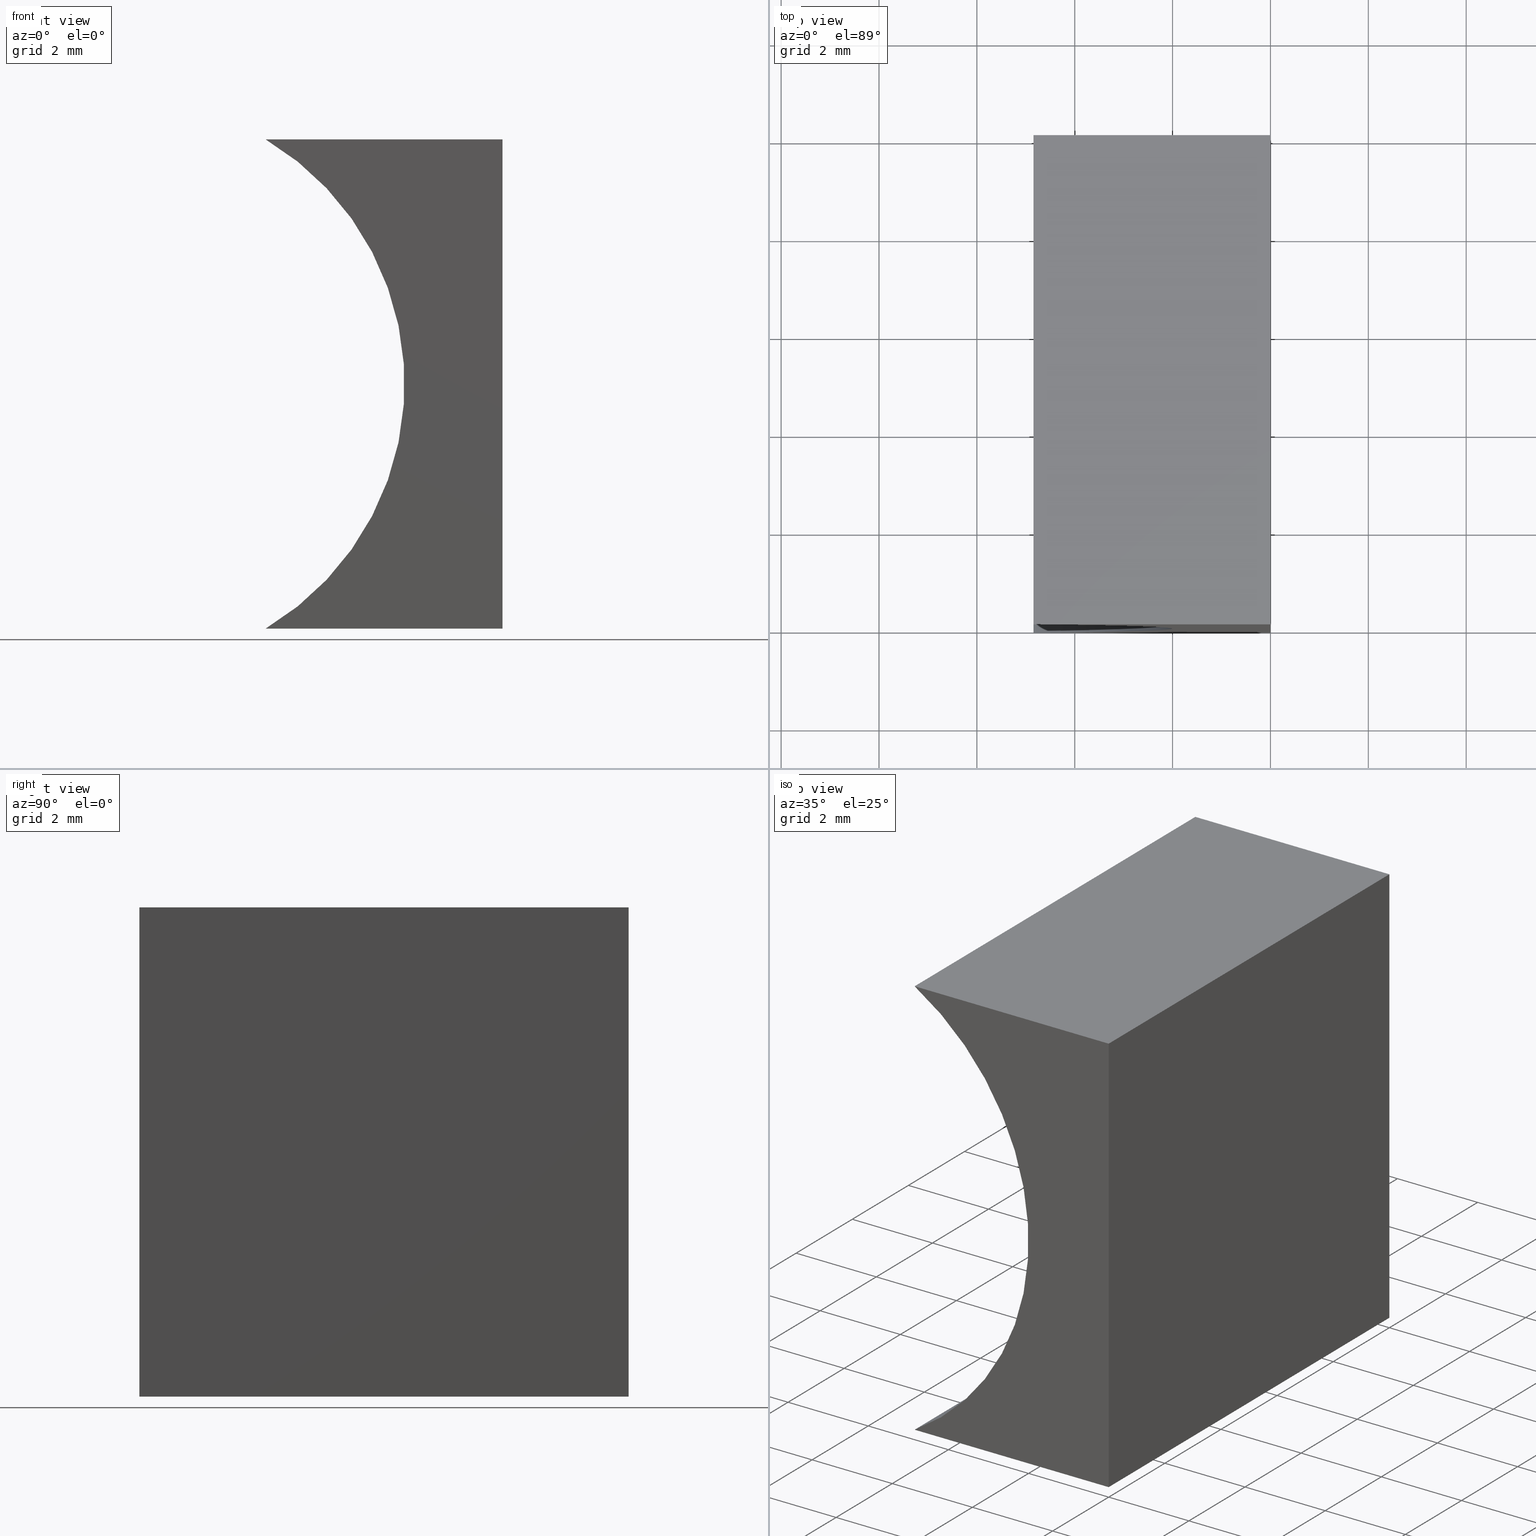
[diagram: canonical four-view strip — front | top / right | iso, engineering-drawing reading convention]
A machine part, canonical four-view strip (front | top / right | iso — engineering-drawing reading convention). The complete STEP part file that produces these views, byte-faithful:
ISO-10303-21;
HEADER;
FILE_DESCRIPTION (( 'STEP AP214' ),
    '1' );
FILE_NAME ('155464.STEP',
    '2019-07-03T03:42:29',
    ( 'user' ),
    ( '΢���й�' ),
    'SwSTEP 2.0',
    'SolidWorks 2016',
    '' );
FILE_SCHEMA (( 'AUTOMOTIVE_DESIGN' ));
ENDSEC;

DATA;
#1 = DIRECTION ( 'NONE',  ( 0.0000000000000000000, -0.0000000000000000000, 1.000000000000000000 ) ) ;
#2 = ORIENTED_EDGE ( 'NONE', *, *, #99, .F. ) ;
#3 = CARTESIAN_POINT ( 'NONE',  ( 0.0000000000000000000, 0.0000000000000000000, 0.0000000000000000000 ) ) ;
#4 = PRESENTATION_STYLE_ASSIGNMENT (( #175 ) ) ;
#5 = APPLICATION_PROTOCOL_DEFINITION ( 'draft international standard', 'automotive_design', 1998, #18 ) ;
#6 = MANIFOLD_SOLID_BREP ( '͹̨-����1', #187 ) ;
#7 = LINE ( 'NONE', #23, #85 ) ;
#8 = CYLINDRICAL_SURFACE ( 'NONE', #180, 5.820000000000000300 ) ;
#9 = PRODUCT_DEFINITION_SHAPE ( 'NONE', 'NONE',  #165 ) ;
#10 = SURFACE_STYLE_FILL_AREA ( #124 ) ;
#11 = VECTOR ( 'NONE', #57, 1000.000000000000000 ) ;
#12 = DIRECTION ( 'NONE',  ( 1.000000000000000000, -0.0000000000000000000, -0.0000000000000000000 ) ) ;
#13 = CARTESIAN_POINT ( 'NONE',  ( 0.0000000000000000000, 10.00000000000000000, 0.0000000000000000000 ) ) ;
#14 = DIRECTION ( 'NONE',  ( 0.0000000000000000000, 1.000000000000000000, 0.0000000000000000000 ) ) ;
#15 = CARTESIAN_POINT ( 'NONE',  ( -7.820000000000000300, 0.0000000000000000000, 5.000000000000000900 ) ) ;
#16 = CARTESIAN_POINT ( 'NONE',  ( 0.0000000000000000000, 10.00000000000000000, 0.0000000000000000000 ) ) ;
#17 = DIRECTION ( 'NONE',  ( -6.123233995736766000E-017, -0.0000000000000000000, -1.000000000000000000 ) ) ;
#18 = APPLICATION_CONTEXT ( 'automotive_design' ) ;
#19 = ORIENTED_EDGE ( 'NONE', *, *, #48, .T. ) ;
#20 = ADVANCED_FACE ( 'NONE', ( #45 ), #58, .F. ) ;
#21 = EDGE_LOOP ( 'NONE', ( #19, #144, #162, #192 ) ) ;
#22 = CARTESIAN_POINT ( 'NONE',  ( 6.123233995736766300E-016, 0.0000000000000000000, 10.00000000000000000 ) ) ;
#23 = CARTESIAN_POINT ( 'NONE',  ( 0.0000000000000000000, 0.0000000000000000000, 0.0000000000000000000 ) ) ;
#24 = ORIENTED_EDGE ( 'NONE', *, *, #64, .T. ) ;
#25 = DIRECTION ( 'NONE',  ( 1.000000000000000000, 0.0000000000000000000, -1.091100883338997400E-016 ) ) ;
#26 = ORIENTED_EDGE ( 'NONE', *, *, #167, .F. ) ;
#27 = DIRECTION ( 'NONE',  ( 0.0000000000000000000, 1.000000000000000000, 0.0000000000000000000 ) ) ;
#28 = SURFACE_SIDE_STYLE ('',( #10 ) ) ;
#29 = EDGE_LOOP ( 'NONE', ( #35, #198, #26, #92 ) ) ;
#30 = ADVANCED_FACE ( 'NONE', ( #125 ), #8, .F. ) ;
#31 = EDGE_CURVE ( 'NONE', #100, #129, #177, .T. ) ;
#32 = VERTEX_POINT ( 'NONE', #149 ) ;
#33 = FACE_OUTER_BOUND ( 'NONE', #29, .T. ) ;
#34 = VECTOR ( 'NONE', #113, 1000.000000000000000 ) ;
#35 = ORIENTED_EDGE ( 'NONE', *, *, #141, .T. ) ;
#36 = SHAPE_DEFINITION_REPRESENTATION ( #9, #193 ) ;
#37 = CARTESIAN_POINT ( 'NONE',  ( 6.123233995736766300E-016, 10.00000000000000000, 10.00000000000000000 ) ) ;
#38 = VECTOR ( 'NONE', #17, 1000.000000000000000 ) ;
#39 = PRODUCT ( '155464', '155464', '', ( #182 ) ) ;
#40 = DIRECTION ( 'NONE',  ( -1.000000000000000000, 0.0000000000000000000, -0.0000000000000000000 ) ) ;
#41 = DIRECTION ( 'NONE',  ( -0.0000000000000000000, -1.000000000000000000, -0.0000000000000000000 ) ) ;
#42 = PLANE ( 'NONE',  #101 ) ;
#43 = CARTESIAN_POINT ( 'NONE',  ( 0.0000000000000000000, 10.00000000000000000, 0.0000000000000000000 ) ) ;
#44 =( NAMED_UNIT ( * ) SI_UNIT ( $, .STERADIAN. ) SOLID_ANGLE_UNIT ( ) );
#45 = FACE_OUTER_BOUND ( 'NONE', #68, .T. ) ;
#46 = DIRECTION ( 'NONE',  ( 1.000000000000000000, 0.0000000000000000000, 0.0000000000000000000 ) ) ;
#47 = VECTOR ( 'NONE', #90, 1000.000000000000000 ) ;
#48 = EDGE_CURVE ( 'NONE', #32, #100, #127, .T. ) ;
#49 = LINE ( 'NONE', #87, #34 ) ;
#50 = COLOUR_RGB ( '',1.000000000000000000, 1.000000000000000000, 1.000000000000000000 ) ;
#51 =( LENGTH_UNIT ( ) NAMED_UNIT ( * ) SI_UNIT ( .MILLI., .METRE. ) );
#52 = EDGE_LOOP ( 'NONE', ( #160, #157, #105, #203 ) ) ;
#53 = FACE_OUTER_BOUND ( 'NONE', #137, .T. ) ;
#54 = UNCERTAINTY_MEASURE_WITH_UNIT (LENGTH_MEASURE( 1.000000000000000100E-005 ), #51, 'distance_accuracy_value', 'NONE');
#55 = DIRECTION ( 'NONE',  ( -0.0000000000000000000, -1.000000000000000000, -0.0000000000000000000 ) ) ;
#56 = EDGE_CURVE ( 'NONE', #112, #32, #49, .T. ) ;
#57 = DIRECTION ( 'NONE',  ( -1.000000000000000000, 0.0000000000000000000, 1.091100883338997400E-016 ) ) ;
#58 = PLANE ( 'NONE',  #152 ) ;
#59 = VERTEX_POINT ( 'NONE', #169 ) ;
#60 = DIRECTION ( 'NONE',  ( -1.000000000000000000, 0.0000000000000000000, 1.091100883338997400E-016 ) ) ;
#61 = FILL_AREA_STYLE_COLOUR ( '', #50 ) ;
#62 =( NAMED_UNIT ( * ) SI_UNIT ( $, .STERADIAN. ) SOLID_ANGLE_UNIT ( ) );
#63 = EDGE_LOOP ( 'NONE', ( #65, #24, #188, #93 ) ) ;
#64 = EDGE_CURVE ( 'NONE', #112, #59, #136, .T. ) ;
#65 = ORIENTED_EDGE ( 'NONE', *, *, #99, .T. ) ;
#66 = DIRECTION ( 'NONE',  ( -0.0000000000000000000, -1.000000000000000000, -0.0000000000000000000 ) ) ;
#67 = DIRECTION ( 'NONE',  ( 0.0000000000000000000, 0.0000000000000000000, -1.000000000000000000 ) ) ;
#68 = EDGE_LOOP ( 'NONE', ( #138, #81, #2, #199 ) ) ;
#69 = CARTESIAN_POINT ( 'NONE',  ( 0.0000000000000000000, 0.0000000000000000000, 0.0000000000000000000 ) ) ;
#70 = PLANE ( 'NONE',  #83 ) ;
#71 = ORIENTED_EDGE ( 'NONE', *, *, #48, .F. ) ;
#72 = DIRECTION ( 'NONE',  ( 1.091100883338997400E-016, -0.0000000000000000000, 1.000000000000000000 ) ) ;
#73 = SURFACE_SIDE_STYLE ('',( #75 ) ) ;
#74 = EDGE_CURVE ( 'NONE', #59, #100, #86, .T. ) ;
#75 = SURFACE_STYLE_FILL_AREA ( #156 ) ;
#76 = VECTOR ( 'NONE', #134, 1000.000000000000000 ) ;
#77 = DIRECTION ( 'NONE',  ( 6.123233995736766000E-017, 0.0000000000000000000, 1.000000000000000000 ) ) ;
#78 =( NAMED_UNIT ( * ) PLANE_ANGLE_UNIT ( ) SI_UNIT ( $, .RADIAN. ) );
#79 = LINE ( 'NONE', #102, #47 ) ;
#80 = APPLICATION_CONTEXT ( 'automotive_design' ) ;
#81 = ORIENTED_EDGE ( 'NONE', *, *, #56, .F. ) ;
#82 = FACE_OUTER_BOUND ( 'NONE', #52, .T. ) ;
#83 = AXIS2_PLACEMENT_3D ( 'NONE', #15, #14, #1 ) ;
#84 = ADVANCED_FACE ( 'NONE', ( #53 ), #70, .F. ) ;
#85 = VECTOR ( 'NONE', #60, 1000.000000000000000 ) ;
#86 = LINE ( 'NONE', #171, #174 ) ;
#87 = CARTESIAN_POINT ( 'NONE',  ( -4.841342584317557900, 10.00000000000000000, 8.673617379884035500E-016 ) ) ;
#88 = LINE ( 'NONE', #37, #176 ) ;
#89 = STYLED_ITEM ( 'NONE', ( #4 ), #6 ) ;
#90 = DIRECTION ( 'NONE',  ( -0.0000000000000000000, -1.000000000000000000, -0.0000000000000000000 ) ) ;
#91 = DIRECTION ( 'NONE',  ( 0.0000000000000000000, 0.0000000000000000000, -1.000000000000000000 ) ) ;
#92 = ORIENTED_EDGE ( 'NONE', *, *, #117, .T. ) ;
#93 = ORIENTED_EDGE ( 'NONE', *, *, #167, .T. ) ;
#94 =( LENGTH_UNIT ( ) NAMED_UNIT ( * ) SI_UNIT ( .MILLI., .METRE. ) );
#95 = VECTOR ( 'NONE', #132, 1000.000000000000000 ) ;
#96 = PRODUCT_DEFINITION_CONTEXT ( 'detailed design', #80, 'design' ) ;
#97 = ADVANCED_FACE ( 'NONE', ( #82 ), #42, .F. ) ;
#98 = PRESENTATION_LAYER_ASSIGNMENT (  '', '', ( #89 ) ) ;
#99 = EDGE_CURVE ( 'NONE', #147, #112, #118, .T. ) ;
#100 = VERTEX_POINT ( 'NONE', #154 ) ;
#101 = AXIS2_PLACEMENT_3D ( 'NONE', #119, #91, #40 ) ;
#102 = CARTESIAN_POINT ( 'NONE',  ( 6.123233995736766300E-016, 10.00000000000000000, 10.00000000000000000 ) ) ;
#103 = CARTESIAN_POINT ( 'NONE',  ( -7.820000000000000300, 10.00000000000000000, 5.000000000000000900 ) ) ;
#104 = CARTESIAN_POINT ( 'NONE',  ( -7.820000000000000300, 10.00000000000000000, 5.000000000000000900 ) ) ;
#105 = ORIENTED_EDGE ( 'NONE', *, *, #128, .F. ) ;
#106 = CARTESIAN_POINT ( 'NONE',  ( 0.0000000000000000000, 10.00000000000000000, 0.0000000000000000000 ) ) ;
#107 = MECHANICAL_DESIGN_GEOMETRIC_PRESENTATION_REPRESENTATION (  '', ( #89 ), #116 ) ;
#108 = CARTESIAN_POINT ( 'NONE',  ( 0.0000000000000000000, 10.00000000000000000, 0.0000000000000000000 ) ) ;
#109 = VERTEX_POINT ( 'NONE', #204 ) ;
#110 = UNCERTAINTY_MEASURE_WITH_UNIT (LENGTH_MEASURE( 1.000000000000000100E-005 ), #121, 'distance_accuracy_value', 'NONE');
#111 = ORIENTED_EDGE ( 'NONE', *, *, #31, .F. ) ;
#112 = VERTEX_POINT ( 'NONE', #133 ) ;
#113 = DIRECTION ( 'NONE',  ( -0.0000000000000000000, -1.000000000000000000, -0.0000000000000000000 ) ) ;
#114 = CARTESIAN_POINT ( 'NONE',  ( 6.123233995736766300E-016, 0.0000000000000000000, 10.00000000000000000 ) ) ;
#115 = LINE ( 'NONE', #43, #76 ) ;
#116 =( GEOMETRIC_REPRESENTATION_CONTEXT ( 3 ) GLOBAL_UNCERTAINTY_ASSIGNED_CONTEXT ( ( #148 ) ) GLOBAL_UNIT_ASSIGNED_CONTEXT ( ( #94, #135, #44 ) ) REPRESENTATION_CONTEXT ( 'NONE', 'WORKASPACE' ) );
#117 = EDGE_CURVE ( 'NONE', #109, #129, #79, .T. ) ;
#118 = LINE ( 'NONE', #13, #11 ) ;
#119 = CARTESIAN_POINT ( 'NONE',  ( 6.123233995736766300E-016, 10.00000000000000000, 10.00000000000000000 ) ) ;
#120 = AXIS2_PLACEMENT_3D ( 'NONE', #16, #178, #77 ) ;
#121 =( LENGTH_UNIT ( ) NAMED_UNIT ( * ) SI_UNIT ( .MILLI., .METRE. ) );
#122 = VECTOR ( 'NONE', #158, 1000.000000000000000 ) ;
#123 = PLANE ( 'NONE',  #146 ) ;
#124 = FILL_AREA_STYLE ('',( #61 ) ) ;
#125 = FACE_OUTER_BOUND ( 'NONE', #21, .T. ) ;
#126 = LINE ( 'NONE', #69, #122 ) ;
#127 = CIRCLE ( 'NONE', #166, 5.820000000000000300 ) ;
#128 = EDGE_CURVE ( 'NONE', #59, #109, #88, .T. ) ;
#129 = VERTEX_POINT ( 'NONE', #114 ) ;
#130 = EDGE_CURVE ( 'NONE', #153, #32, #7, .T. ) ;
#131 =( GEOMETRIC_REPRESENTATION_CONTEXT ( 3 ) GLOBAL_UNCERTAINTY_ASSIGNED_CONTEXT ( ( #110 ) ) GLOBAL_UNIT_ASSIGNED_CONTEXT ( ( #121, #78, #196 ) ) REPRESENTATION_CONTEXT ( 'NONE', 'WORKASPACE' ) );
#132 = DIRECTION ( 'NONE',  ( 1.000000000000000000, -0.0000000000000000000, -0.0000000000000000000 ) ) ;
#133 = CARTESIAN_POINT ( 'NONE',  ( -4.841342584317557900, 10.00000000000000000, 8.673617379884035500E-016 ) ) ;
#134 = DIRECTION ( 'NONE',  ( -0.0000000000000000000, -1.000000000000000000, -0.0000000000000000000 ) ) ;
#135 =( NAMED_UNIT ( * ) PLANE_ANGLE_UNIT ( ) SI_UNIT ( $, .RADIAN. ) );
#136 = CIRCLE ( 'NONE', #140, 5.820000000000000300 ) ;
#137 = EDGE_LOOP ( 'NONE', ( #183, #145, #111, #71 ) ) ;
#138 = ORIENTED_EDGE ( 'NONE', *, *, #130, .T. ) ;
#139 = DIRECTION ( 'NONE',  ( 0.0000000000000000000, 0.0000000000000000000, 1.000000000000000000 ) ) ;
#140 = AXIS2_PLACEMENT_3D ( 'NONE', #103, #173, #150 ) ;
#141 = EDGE_CURVE ( 'NONE', #129, #153, #126, .T. ) ;
#142 = DIRECTION ( 'NONE',  ( 0.0000000000000000000, -0.0000000000000000000, 1.000000000000000000 ) ) ;
#143 = SURFACE_STYLE_USAGE ( .BOTH. , #28 ) ;
#144 = ORIENTED_EDGE ( 'NONE', *, *, #74, .F. ) ;
#145 = ORIENTED_EDGE ( 'NONE', *, *, #141, .F. ) ;
#146 = AXIS2_PLACEMENT_3D ( 'NONE', #195, #27, #142 ) ;
#147 = VERTEX_POINT ( 'NONE', #106 ) ;
#148 = UNCERTAINTY_MEASURE_WITH_UNIT (LENGTH_MEASURE( 1.000000000000000100E-005 ), #94, 'distance_accuracy_value', 'NONE');
#149 = CARTESIAN_POINT ( 'NONE',  ( -4.841342584317557900, 0.0000000000000000000, 8.673617379884035500E-016 ) ) ;
#150 = DIRECTION ( 'NONE',  ( 0.0000000000000000000, 0.0000000000000000000, 1.000000000000000000 ) ) ;
#151 = AXIS2_PLACEMENT_3D ( 'NONE', #181, #139, #46 ) ;
#152 = AXIS2_PLACEMENT_3D ( 'NONE', #202, #72, #25 ) ;
#153 = VERTEX_POINT ( 'NONE', #3 ) ;
#154 = CARTESIAN_POINT ( 'NONE',  ( -4.841342584317557000, 0.0000000000000000000, 10.00000000000000000 ) ) ;
#155 = EDGE_CURVE ( 'NONE', #147, #153, #115, .T. ) ;
#156 = FILL_AREA_STYLE ('',( #191 ) ) ;
#157 = ORIENTED_EDGE ( 'NONE', *, *, #117, .F. ) ;
#158 = DIRECTION ( 'NONE',  ( -6.123233995736766000E-017, -0.0000000000000000000, -1.000000000000000000 ) ) ;
#159 = PLANE ( 'NONE',  #120 ) ;
#160 = ORIENTED_EDGE ( 'NONE', *, *, #31, .T. ) ;
#161 =( NAMED_UNIT ( * ) PLANE_ANGLE_UNIT ( ) SI_UNIT ( $, .RADIAN. ) );
#162 = ORIENTED_EDGE ( 'NONE', *, *, #64, .F. ) ;
#163 = ADVANCED_FACE ( 'NONE', ( #33 ), #159, .F. ) ;
#164 = FACE_OUTER_BOUND ( 'NONE', #63, .T. ) ;
#165 = PRODUCT_DEFINITION ( 'δ֪', '', #179, #96 ) ;
#166 = AXIS2_PLACEMENT_3D ( 'NONE', #200, #66, #189 ) ;
#167 = EDGE_CURVE ( 'NONE', #109, #147, #170, .T. ) ;
#168 = STYLED_ITEM ( 'NONE', ( #172 ), #193 ) ;
#169 = CARTESIAN_POINT ( 'NONE',  ( -4.841342584317557000, 10.00000000000000000, 10.00000000000000000 ) ) ;
#170 = LINE ( 'NONE', #108, #38 ) ;
#171 = CARTESIAN_POINT ( 'NONE',  ( -4.841342584317557000, 10.00000000000000000, 10.00000000000000000 ) ) ;
#172 = PRESENTATION_STYLE_ASSIGNMENT (( #143 ) ) ;
#173 = DIRECTION ( 'NONE',  ( -0.0000000000000000000, -1.000000000000000000, -0.0000000000000000000 ) ) ;
#174 = VECTOR ( 'NONE', #41, 1000.000000000000000 ) ;
#175 = SURFACE_STYLE_USAGE ( .BOTH. , #73 ) ;
#176 = VECTOR ( 'NONE', #12, 1000.000000000000000 ) ;
#177 = LINE ( 'NONE', #22, #95 ) ;
#178 = DIRECTION ( 'NONE',  ( -1.000000000000000000, 0.0000000000000000000, 6.123233995736766000E-017 ) ) ;
#179 = PRODUCT_DEFINITION_FORMATION_WITH_SPECIFIED_SOURCE ( '�κ�', '', #39, .NOT_KNOWN. ) ;
#180 = AXIS2_PLACEMENT_3D ( 'NONE', #104, #55, #67 ) ;
#181 = CARTESIAN_POINT ( 'NONE',  ( 0.0000000000000000000, 0.0000000000000000000, 0.0000000000000000000 ) ) ;
#182 = PRODUCT_CONTEXT ( 'NONE', #18, 'mechanical' ) ;
#183 = ORIENTED_EDGE ( 'NONE', *, *, #130, .F. ) ;
#184 = COLOUR_RGB ( '',1.000000000000000000, 1.000000000000000000, 1.000000000000000000 ) ;
#185 = PRESENTATION_LAYER_ASSIGNMENT (  '', '', ( #168 ) ) ;
#186 = ADVANCED_FACE ( 'NONE', ( #164 ), #123, .T. ) ;
#187 = CLOSED_SHELL ( 'NONE', ( #20, #30, #97, #163, #186, #84 ) ) ;
#188 = ORIENTED_EDGE ( 'NONE', *, *, #128, .T. ) ;
#189 = DIRECTION ( 'NONE',  ( 0.0000000000000000000, 0.0000000000000000000, 1.000000000000000000 ) ) ;
#190 = PRODUCT_RELATED_PRODUCT_CATEGORY ( 'part', '', ( #39 ) ) ;
#191 = FILL_AREA_STYLE_COLOUR ( '', #184 ) ;
#192 = ORIENTED_EDGE ( 'NONE', *, *, #56, .T. ) ;
#193 = ADVANCED_BREP_SHAPE_REPRESENTATION ( '155464', ( #6, #151 ), #131 ) ;
#194 = MECHANICAL_DESIGN_GEOMETRIC_PRESENTATION_REPRESENTATION (  '', ( #168 ), #201 ) ;
#195 = CARTESIAN_POINT ( 'NONE',  ( -7.820000000000000300, 10.00000000000000000, 5.000000000000000900 ) ) ;
#196 =( NAMED_UNIT ( * ) SI_UNIT ( $, .STERADIAN. ) SOLID_ANGLE_UNIT ( ) );
#197 = APPLICATION_PROTOCOL_DEFINITION ( 'draft international standard', 'automotive_design', 1998, #80 ) ;
#198 = ORIENTED_EDGE ( 'NONE', *, *, #155, .F. ) ;
#199 = ORIENTED_EDGE ( 'NONE', *, *, #155, .T. ) ;
#200 = CARTESIAN_POINT ( 'NONE',  ( -7.820000000000000300, 0.0000000000000000000, 5.000000000000000900 ) ) ;
#201 =( GEOMETRIC_REPRESENTATION_CONTEXT ( 3 ) GLOBAL_UNCERTAINTY_ASSIGNED_CONTEXT ( ( #54 ) ) GLOBAL_UNIT_ASSIGNED_CONTEXT ( ( #51, #161, #62 ) ) REPRESENTATION_CONTEXT ( 'NONE', 'WORKASPACE' ) );
#202 = CARTESIAN_POINT ( 'NONE',  ( 0.0000000000000000000, 10.00000000000000000, 0.0000000000000000000 ) ) ;
#203 = ORIENTED_EDGE ( 'NONE', *, *, #74, .T. ) ;
#204 = CARTESIAN_POINT ( 'NONE',  ( 6.123233995736766300E-016, 10.00000000000000000, 10.00000000000000000 ) ) ;
ENDSEC;
END-ISO-10303-21;
